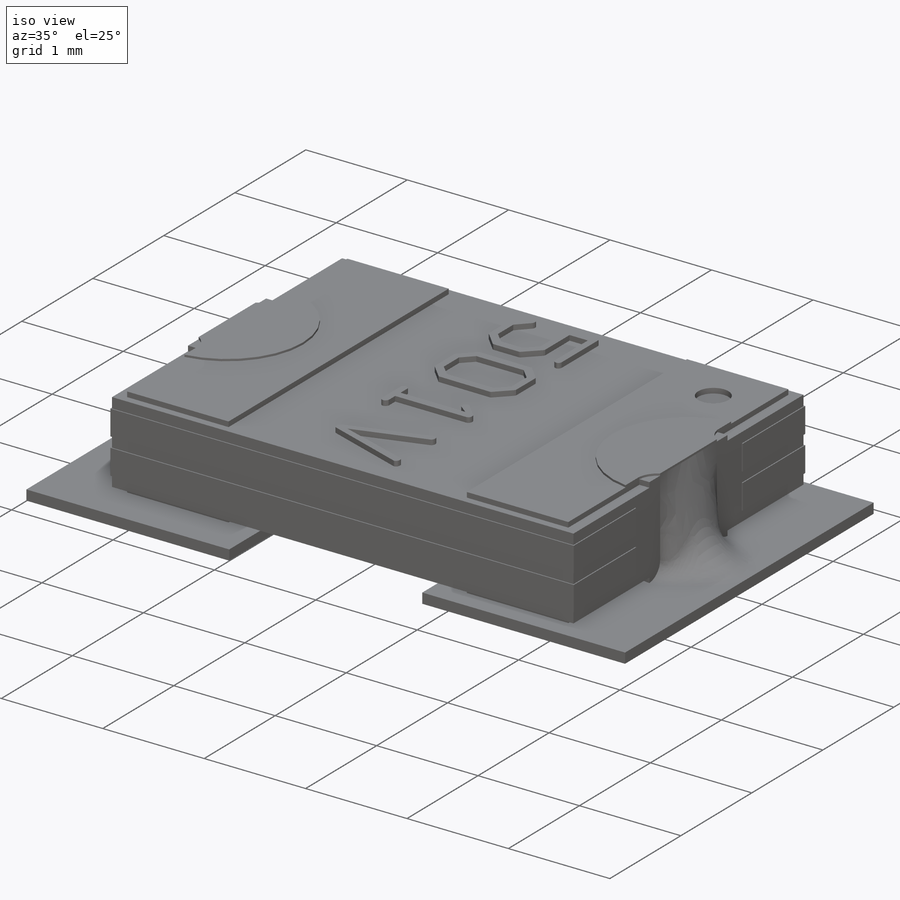
[diagram: iso view]
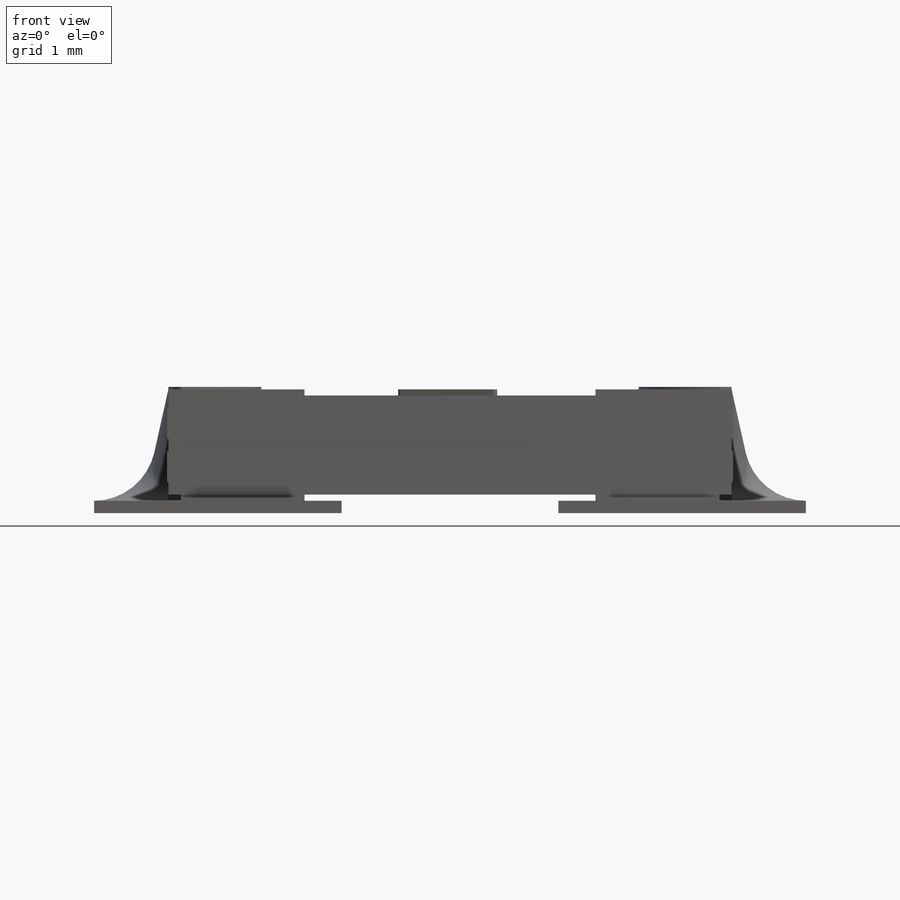
[diagram: front view]
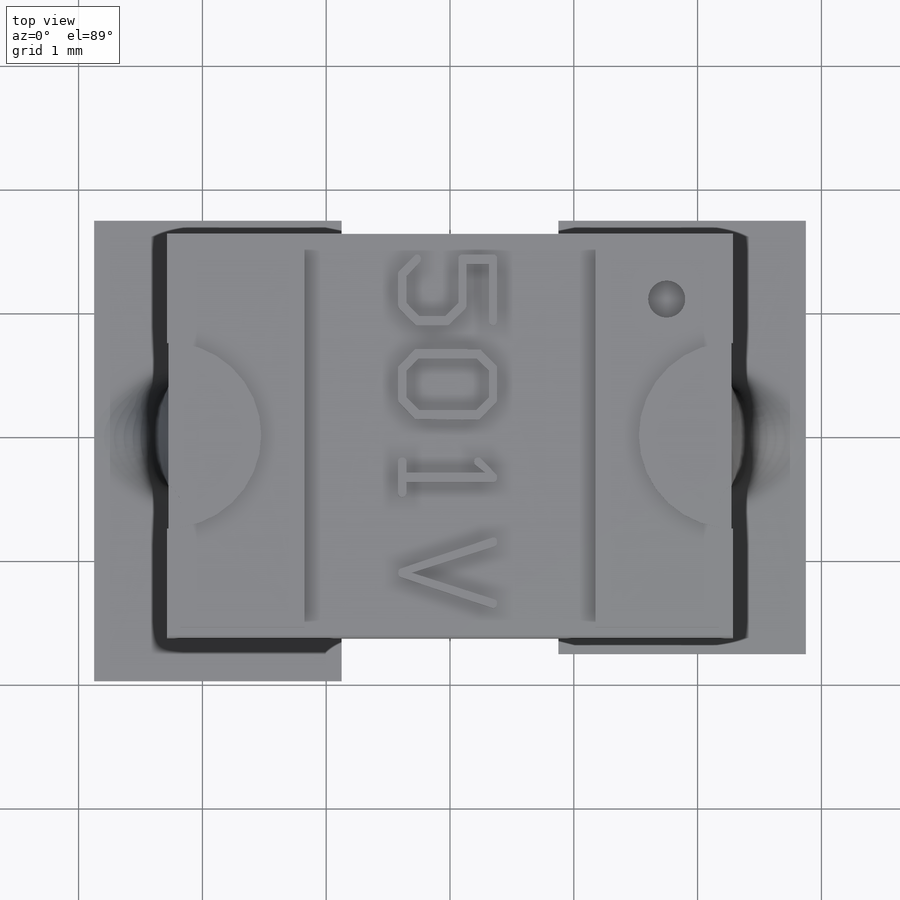
[diagram: top view]
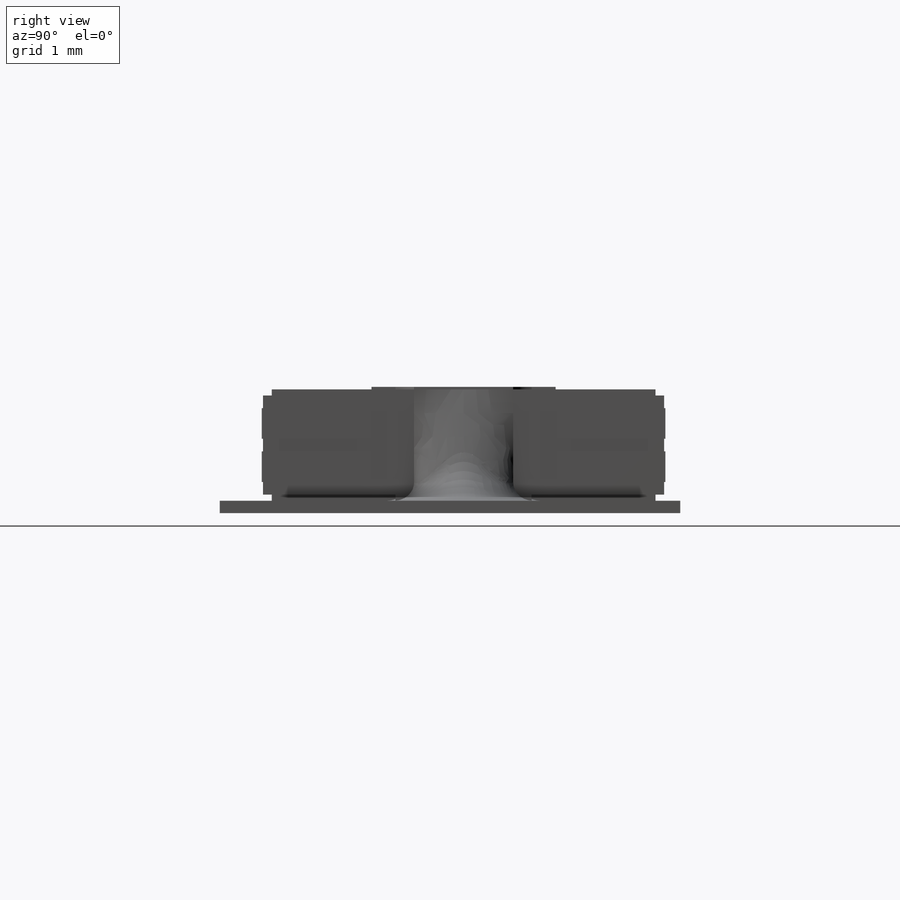
[diagram: right view]
SOLIDWORKS PART (.sldprt)
format: sldprt  version: not decoded by parser v0  size: 666,112 bytes
history: native  units: mm
features: sketch x12, extrude x7, cut_extrude x2, material x1, mirror x1 (+13 scaffold rows collapsed)
feature tree (36):
  scaffold x13  (default folders/planes/origin — collapsed)
  material  "Pure Gold"
  sketch  "Sketch2"  dims[D1=3.24mm D2=1.62mm D3=0.8mm D4=0.15mm]
  extrude  "Boss-Extrude1"  Depth=4.55mm
  sketch  "Sketch3"  dims[D1=1.0mm D2=1.1mm D3=1.1mm D4=3.1mm D5=1.55mm D6=1.1mm D7=0.55mm]
  extrude  "Boss-Extrude2"  Depth=0.05mm
  sketch  "Sketch5"  dims[D1=0.8mm]
  cut_extrude  "Cut-Extrude2"  [1 undecoded]
  sketch  "Sketch6"  dims[D1=0.01mm D2=0.01mm D3=1.5mm D4=~0.101644mm D5=~0.101644mm D6=~0.101644mm]
  extrude  "Boss-Extrude3"  Depth=4.57mm
  sketch  "Sketch7"  dims[D1=0.4mm D2=1.45mm]
  extrude  "Boss-Extrude4"  Depth=0.05mm
  sketch  "Sketch8"  dims[D1=0.3mm D2=1.75mm D3=1.1mm]
  cut_extrude  "Cut-Extrude3"  Depth=0.05mm
  sketch  "Sketch9"  dims[D1=1.75mm D2=2.0mm D3=2.0mm D4=0.875mm D5=3.5mm D6=1.75mm]
  extrude  "Boss-Extrude5"  Depth=0.1mm
  sketch  "Sketch10"  dims[D1=0.4mm D2=0.4mm]
  sketch  "Sketch11"  dims[D0=0.15mm D1=0.15mm D2=0.5mm]
  sketch  "Sketch12"  dims[D1=0.2mm]
  sketch  "Sketch13"
  extrude  "VarFillet11"  Depth=0.15mm
  sketch  "Sketch14"  dims[D1=0.75mm D2=0.2mm]
  extrude  "Boss-Extrude7"  Depth=0.02mm
  mirror  "Mirror5"
decode coverage: 19 of 22 modeling features carry decoded parameters
note: ~ marks probable driven/reference dimensions
note: 1 parameter value undecoded
note: suppression state not decoded; provenance and decode notes live in map.json
